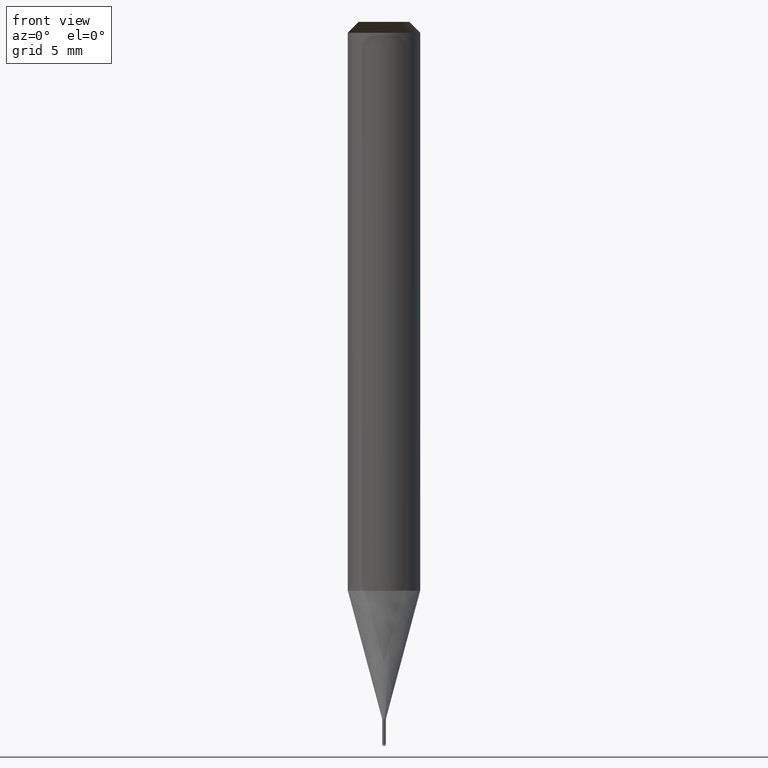
[diagram: clean part render]
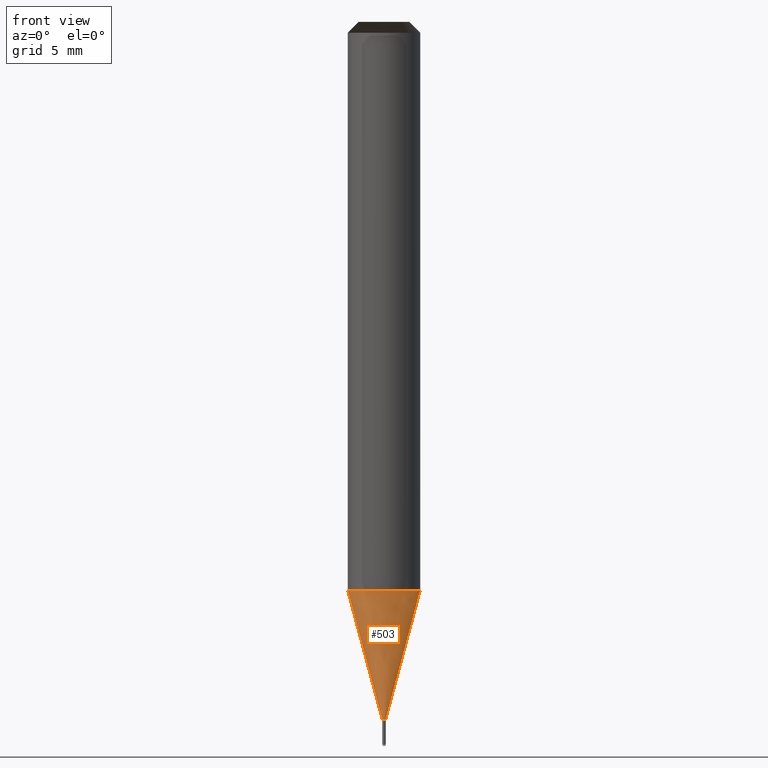
[diagram: same view with one face highlighted and labeled with its STEP entity id]
A machine part, front view. The second image highlights one B-rep face of the part: STEP entity #503.
In plain terms, the highlighted face is a freeform B-spline surface patch.
Its self-contained STEP definition (entity closure, byte-faithful):
#190=CARTESIAN_POINT('',(0.1,0.0,-7.090896534381));
#194=CARTESIAN_POINT('',(-0.1,0.0,-7.090896534381));
#195=CARTESIAN_POINT('',(2.0,0.0,0.0));
#199=CARTESIAN_POINT('',(-2.0,0.0,0.0));
#211=CARTESIAN_POINT('',(-0.1,-0.1,-7.090896534381));
#212=CARTESIAN_POINT('',(0.0,-0.1,-7.090896534381));
#213=CARTESIAN_POINT('',(0.1,-0.1,-7.090896534381));
#214=CARTESIAN_POINT('',(-2.0,-2.0,0.0));
#215=CARTESIAN_POINT('',(0.0,-2.0,0.0));
#216=CARTESIAN_POINT('',(2.0,-2.0,0.0));
#484=(
BOUNDED_SURFACE()
B_SPLINE_SURFACE(1,2,(
(#194,#211,#212,#213,#190),
(#199,#214,#215,#216,#195)
), .UNSPECIFIED.,.F.,.F.,.F.)
B_SPLINE_SURFACE_WITH_KNOTS((2,2),(3,2,3),(
0.0,1.0),(
0.0,0.5,1.0), .UNSPECIFIED.)
GEOMETRIC_REPRESENTATION_ITEM()
RATIONAL_B_SPLINE_SURFACE(((1.0,0.707106781187,1.0,0.707106781187,1.0),
(1.0,0.707106781187,1.0,0.707106781187,1.0)
))
REPRESENTATION_ITEM('')
SURFACE()
);
#485=(
BOUNDED_CURVE()
B_SPLINE_CURVE(1,(#199,#194),.UNSPECIFIED.,.F.,.F.)
B_SPLINE_CURVE_WITH_KNOTS((2,2),
(0.0,1.0),.UNSPECIFIED.)
CURVE()
GEOMETRIC_REPRESENTATION_ITEM()
RATIONAL_B_SPLINE_CURVE((1.0,1.0))
REPRESENTATION_ITEM('')
);
#486=(
BOUNDED_CURVE()
B_SPLINE_CURVE(2,(#194,#211,#212,#213,#190),.UNSPECIFIED.,.F.,.F.)
B_SPLINE_CURVE_WITH_KNOTS((3,2,3),
(0.0,0.5,1.0),.UNSPECIFIED.)
CURVE()
GEOMETRIC_REPRESENTATION_ITEM()
RATIONAL_B_SPLINE_CURVE((1.0,0.707106781187,1.0,0.707106781187,1.0))
REPRESENTATION_ITEM('')
);
#487=(
BOUNDED_CURVE()
B_SPLINE_CURVE(1,(#190,#195),.UNSPECIFIED.,.F.,.F.)
B_SPLINE_CURVE_WITH_KNOTS((2,2),
(0.0,1.0),.UNSPECIFIED.)
CURVE()
GEOMETRIC_REPRESENTATION_ITEM()
RATIONAL_B_SPLINE_CURVE((1.0,1.0))
REPRESENTATION_ITEM('')
);
#488=(
BOUNDED_CURVE()
B_SPLINE_CURVE(2,(#195,#216,#215,#214,#199),.UNSPECIFIED.,.F.,.F.)
B_SPLINE_CURVE_WITH_KNOTS((3,2,3),
(0.0,0.5,1.0),.UNSPECIFIED.)
CURVE()
GEOMETRIC_REPRESENTATION_ITEM()
RATIONAL_B_SPLINE_CURVE((1.0,0.707106781187,1.0,0.707106781187,1.0))
REPRESENTATION_ITEM('')
);
#489=VERTEX_POINT('',#190);
#490=VERTEX_POINT('',#194);
#491=VERTEX_POINT('',#195);
#492=VERTEX_POINT('',#199);
#493=EDGE_CURVE('',#492,#490,#485,.T.);
#494=EDGE_CURVE('',#490,#489,#486,.T.);
#495=EDGE_CURVE('',#489,#491,#487,.T.);
#496=EDGE_CURVE('',#491,#492,#488,.T.);
#497=ORIENTED_EDGE('',*,*,#493,.T.);
#498=ORIENTED_EDGE('',*,*,#494,.T.);
#499=ORIENTED_EDGE('',*,*,#495,.T.);
#500=ORIENTED_EDGE('',*,*,#496,.T.);
#501=EDGE_LOOP('',(#497,#498,#499,#500));
#502=FACE_OUTER_BOUND('',#501,.T.);
#503=ADVANCED_FACE('',(#502),#484,.T.);